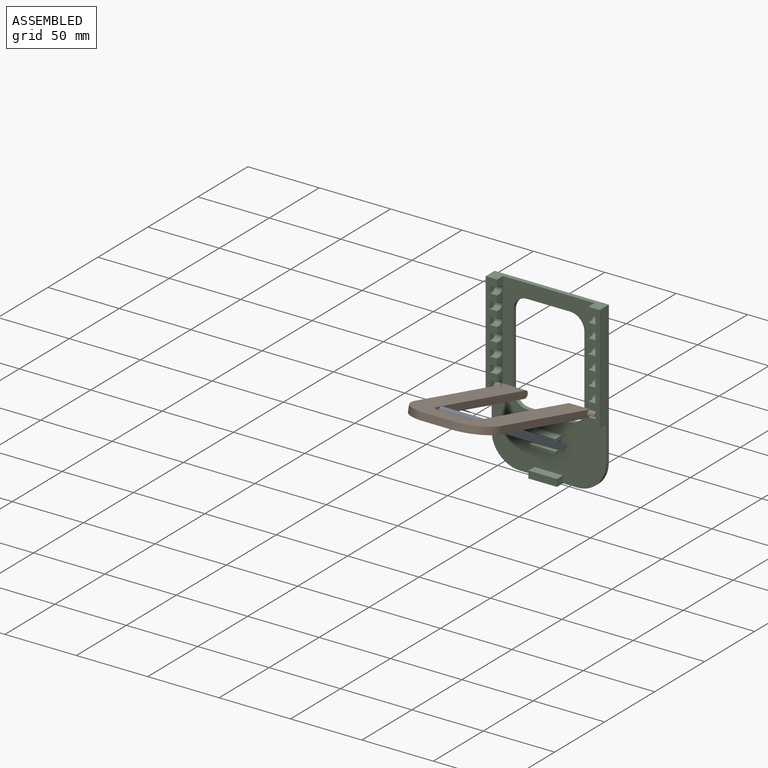
[diagram: assembled view]
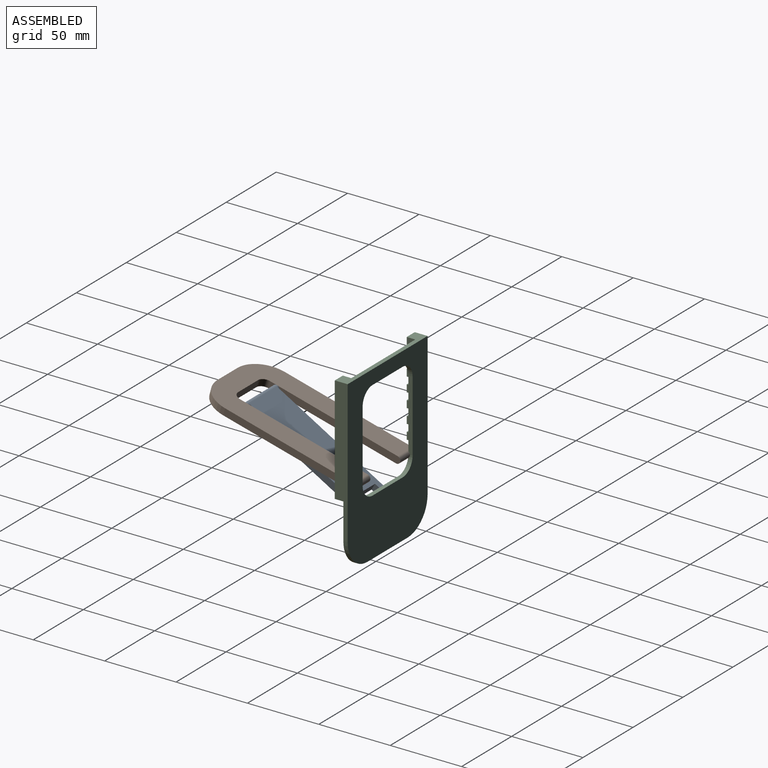
[diagram: assembled view, second angle]
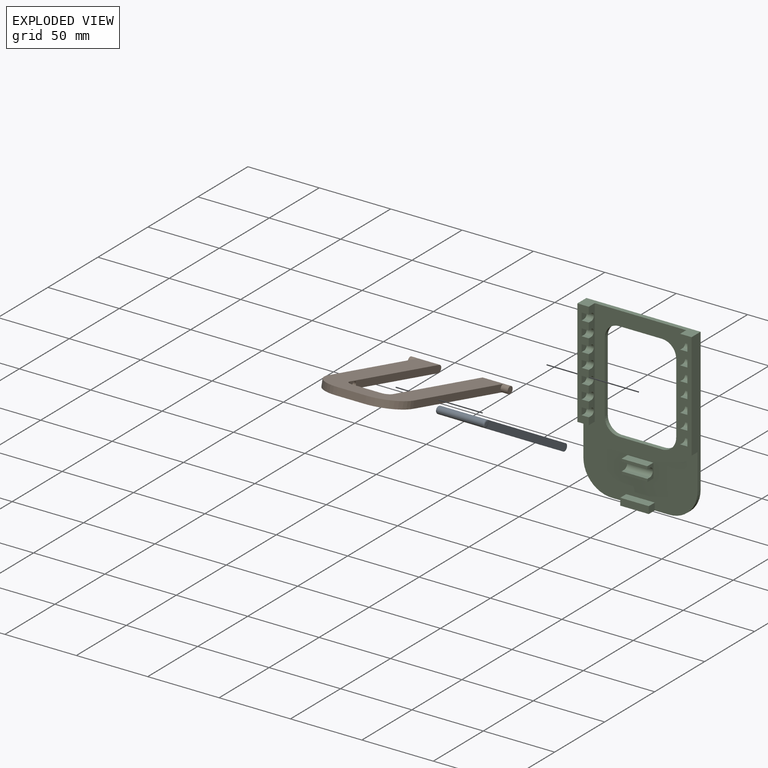
[diagram: exploded view]
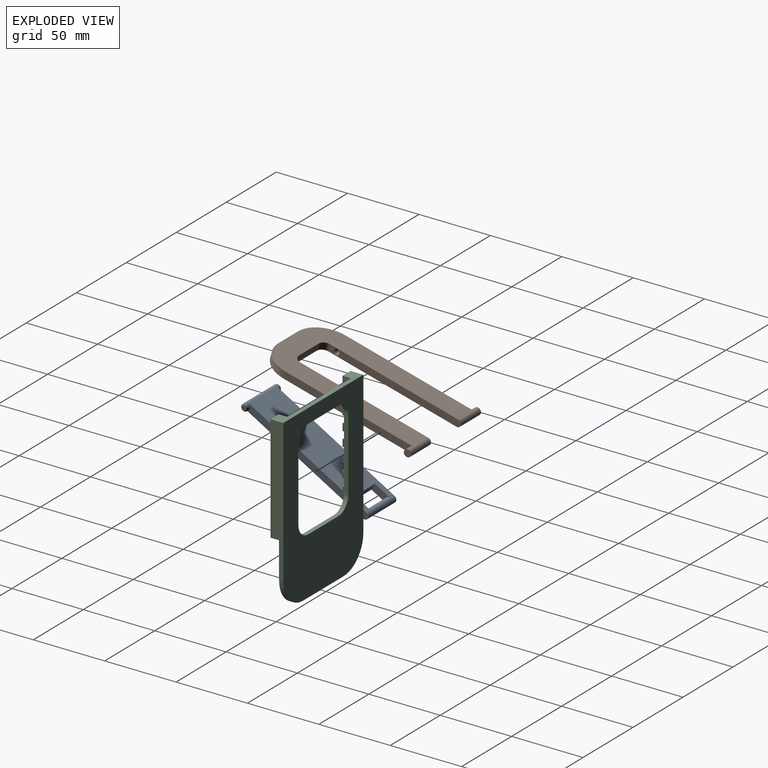
[diagram: exploded view, second angle]
ASSEMBLY  parts=3 mates=2
PART A: 13 faces, bbox 34x5.4x100.2 mm
  f0: plane 97.5x5mm, normal (1,0,0), area 475mm2, adj f4,f5,f7,f8
  f1: plane 97.5x5mm, normal (-1,0,0), area 475mm2, adj f4,f5,f7,f8
  f2: plane 12.5x5mm, normal (-1,0,0), area 52.7mm2, adj f4,f5,f6,f7
  f3: plane 12.5x5mm, normal (1,0,0), area 52.7mm2, adj f4,f5,f6,f7
  f4: plane 95x28mm, normal (0,-1,0), area 2410mm2, adj f0,f1,f2,f3,f6,f7,f8
  f5: plane 95x28mm, normal (0,1,0), area 2410mm2, adj f0,f1,f2,f3,f6,f7,f8
  f6: plane 20x5mm, normal (0,0,-1), area 100mm2, adj f2,f3,f4,f5
  f7: cylinder r=2.5mm len=28mm, axis (-1,0,0), area 377mm2, adj f0,f1,f2,f3,f4,f5
  f8: cylinder r=2.5mm len=32mm, axis (1,0,0), area 282.7mm2, adj f0,f1,f4,f5,f10,f12
  f9: plane 3x3mm, normal (-1,0,0), area 7.1mm2, adj f10
  f10: torus R=1.5mm, axis (-1,0,0), area 21.1mm2, adj f8,f9
  f11: plane 3x3mm, normal (1,0,0), area 7.1mm2, adj f12
  f12: torus R=1.5mm, axis (1,0,0), area 21.1mm2, adj f8,f11
PART B: 20 faces, bbox 70x115x5 mm
  f0: plane 92.5x5mm, normal (1,0,0), area 452.7mm2, adj f6,f7,f10,f16
  f1: plane 92.5x5mm, normal (-1,0,0), area 452.7mm2, adj f6,f7,f8,f17
  f2: plane 95x5mm, normal (-1,0,0), area 459.8mm2, adj f6,f7,f10,f14,f19
  f3: plane 20x5mm, normal (0,1,0), area 100mm2, adj f6,f7,f16,f17
  f4: plane 95x5mm, normal (1,0,0), area 459.8mm2, adj f6,f7,f8,f12,f18
  f5: plane 20x5mm, normal (0,-1,0), area 100mm2, adj f6,f7,f18,f19
  f6: plane 112.5x60mm, normal (0,0,1), area 3664mm2, adj f0,f1,f2,f3,f4,f5,f8,f10
  f7: plane 112.5x60mm, normal (0,0,-1), area 3664mm2, adj f0,f1,f2,f3,f4,f5,f8,f10
  f8: cylinder r=2.5mm len=20mm, axis (1,0,0), area 196.3mm2, adj f1,f4,f6,f7,f9
  f9: plane 5x5mm, normal (-1,0,0), area 19.6mm2, adj f8
  f10: cylinder r=2.5mm len=20mm, axis (-1,0,0), area 196.3mm2, adj f0,f2,f6,f7,f11
  f11: plane 5x5mm, normal (1,0,0), area 19.6mm2, adj f10
  f12: cylinder r=2mm len=4mm, axis (1,0,0), area 12.6mm2, adj f4,f13
  f13: sphere r=2mm, area 25.1mm2, adj f12
  f14: cylinder r=2mm len=4mm, axis (-1,0,0), area 12.6mm2, adj f2,f15
  f15: sphere r=2mm, area 25.1mm2, adj f14
  f16: cylinder r=20mm len=20mm, axis (0,0,-1), area 157.1mm2, adj f0,f3,f6,f7
  f17: cylinder r=20mm len=20mm, axis (0,0,1), area 157.1mm2, adj f1,f3,f6,f7
  f18: cylinder r=5mm len=5mm, axis (0,0,1), area 39.3mm2, adj f4,f5,f6,f7
  f19: cylinder r=5mm len=5mm, axis (0,0,-1), area 39.3mm2, adj f2,f5,f6,f7
PART C: 91 faces, bbox 80x9x120 mm
  f0: cylinder r=2.5mm len=5mm, axis (1,0,0), area 39.3mm2, adj f1,f2,f3,f84
  f1: plane 5x2.5mm, normal (0,0,-1), area 12.5mm2, adj f0,f2,f84,f86
  f2: plane 5x5mm, normal (-1,0,0), area 22.3mm2, adj f0,f1,f3,f86
  f3: plane 5x2.5mm, normal (0,0,1), area 12.5mm2, adj f0,f2,f84,f86
  f4: cylinder r=2.5mm len=5mm, axis (1,0,0), area 39.3mm2, adj f5,f6,f7,f84
  f5: plane 5x2.5mm, normal (0,0,-1), area 12.5mm2, adj f4,f6,f84,f86
  f6: plane 5x5mm, normal (-1,0,0), area 22.3mm2, adj f4,f5,f7,f86
  f7: plane 5x2.5mm, normal (0,0,1), area 12.5mm2, adj f4,f6,f84,f86
  f8: cylinder r=2.5mm len=5mm, axis (1,0,0), area 39.3mm2, adj f9,f10,f11,f84
  f9: plane 5x2.5mm, normal (0,0,-1), area 12.5mm2, adj f8,f10,f84,f86
  f10: plane 5x5mm, normal (-1,0,0), area 22.3mm2, adj f8,f9,f11,f86
  f11: plane 5x2.5mm, normal (0,0,1), area 12.5mm2, adj f8,f10,f84,f86
  f12: cylinder r=2.5mm len=5mm, axis (1,0,0), area 39.3mm2, adj f13,f14,f15,f84
  f13: plane 5x2.5mm, normal (0,0,-1), area 12.5mm2, adj f12,f14,f84,f86
  f14: plane 5x5mm, normal (-1,0,0), area 22.3mm2, adj f12,f13,f15,f86
  f15: plane 5x2.5mm, normal (0,0,1), area 12.5mm2, adj f12,f14,f84,f86
  f16: cylinder r=2.5mm len=5mm, axis (1,0,0), area 39.3mm2, adj f17,f18,f19,f84
  f17: plane 5x2.5mm, normal (0,0,-1), area 12.5mm2, adj f16,f18,f84,f86
  f18: plane 5x5mm, normal (-1,0,0), area 22.3mm2, adj f16,f17,f19,f86
  f19: plane 5x2.5mm, normal (0,0,1), area 12.5mm2, adj f16,f18,f84,f86
  f20: cylinder r=2.5mm len=5mm, axis (1,0,0), area 39.3mm2, adj f21,f22,f23,f84
  f21: plane 5x2.5mm, normal (0,0,-1), area 12.5mm2, adj f20,f22,f84,f86
  f22: plane 5x5mm, normal (-1,0,0), area 22.3mm2, adj f20,f21,f23,f86
  f23: plane 5x2.5mm, normal (0,0,1), area 12.5mm2, adj f20,f22,f84,f86
  f24: plane 120x80mm, normal (0,-1,0), area 4534.2mm2, adj f25,f51,f53,f54,f55,f56,f57,f58
  f25: plane 10x6mm, normal (1,0,0), area 30.9mm2, adj f24,f26,f77,f79,f80,f81,f82,f83
  f26: plane 18x2mm, normal (0,-1,0), area 36mm2, adj f25,f77,f78,f81
  f27: cylinder r=2.5mm len=5mm, axis (1,0,0), area 39.3mm2, adj f28,f29,f30,f51
  f28: plane 5x2.5mm, normal (0,0,-1), area 12.5mm2, adj f27,f29,f51,f68
  f29: plane 5x5mm, normal (1,0,0), area 22.3mm2, adj f27,f28,f30,f68
  f30: plane 5x2.5mm, normal (0,0,1), area 12.5mm2, adj f27,f29,f51,f68
  f31: cylinder r=2.5mm len=5mm, axis (1,0,0), area 39.3mm2, adj f32,f33,f34,f51
  f32: plane 5x2.5mm, normal (0,0,-1), area 12.5mm2, adj f31,f33,f51,f68
  f33: plane 5x5mm, normal (1,0,0), area 22.3mm2, adj f31,f32,f34,f68
  f34: plane 5x2.5mm, normal (0,0,1), area 12.5mm2, adj f31,f33,f51,f68
  f35: cylinder r=2.5mm len=5mm, axis (1,0,0), area 39.3mm2, adj f36,f37,f38,f51
  f36: plane 5x2.5mm, normal (0,0,-1), area 12.5mm2, adj f35,f37,f51,f68
  f37: plane 5x5mm, normal (1,0,0), area 22.3mm2, adj f35,f36,f38,f68
  f38: plane 5x2.5mm, normal (0,0,1), area 12.5mm2, adj f35,f37,f51,f68
  f39: cylinder r=2.5mm len=5mm, axis (1,0,0), area 39.3mm2, adj f40,f41,f42,f51
  f40: plane 5x2.5mm, normal (0,0,-1), area 12.5mm2, adj f39,f41,f51,f68
  f41: plane 5x5mm, normal (1,0,0), area 22.3mm2, adj f39,f40,f42,f68
  f42: plane 5x2.5mm, normal (0,0,1), area 12.5mm2, adj f39,f41,f51,f68
  f43: cylinder r=2.5mm len=5mm, axis (1,0,0), area 39.3mm2, adj f44,f45,f46,f51
  f44: plane 5x2.5mm, normal (0,0,-1), area 12.5mm2, adj f43,f45,f51,f68
  f45: plane 5x5mm, normal (1,0,0), area 22.3mm2, adj f43,f44,f46,f68
  f46: plane 5x2.5mm, normal (0,0,1), area 12.5mm2, adj f43,f45,f51,f68
  f47: cylinder r=2.5mm len=5mm, axis (1,0,0), area 39.3mm2, adj f48,f49,f50,f51
  f48: plane 5x2.5mm, normal (0,0,-1), area 12.5mm2, adj f47,f49,f51,f68
  f49: plane 5x5mm, normal (1,0,0), area 22.3mm2, adj f47,f48,f50,f68
  f50: plane 5x2.5mm, normal (0,0,1), area 12.5mm2, adj f47,f49,f51,f68
  f51: plane 75x6mm, normal (1,0,0), area 293.8mm2, adj f24,f27,f28,f30,f31,f32,f34,f35
  f52: plane 120x80mm, normal (0,1,0), area 6014.2mm2, adj f53,f54,f55,f56,f57,f58,f59,f60
  f53: plane 80x9mm, normal (0,0,1), area 336mm2, adj f24,f51,f52,f54,f56,f68,f84,f86
  f54: plane 100x9mm, normal (-1,0,0), area 750mm2, adj f24,f52,f53,f65,f67,f68
  f55: plane 40x9mm, normal (0,0,-1), area 240mm2, adj f24,f52,f65,f66,f73,f75,f76
  f56: plane 100x9mm, normal (1,0,0), area 750mm2, adj f24,f52,f53,f66,f85,f86
  f57: plane 50x3mm, normal (-1,0,0), area 150mm2, adj f24,f52,f61,f64
  f58: plane 30x3mm, normal (0,0,-1), area 90mm2, adj f24,f52,f61,f62
  f59: plane 50x3mm, normal (1,0,0), area 150mm2, adj f24,f52,f62,f63
  f60: plane 30x3mm, normal (0,0,1), area 90mm2, adj f24,f52,f63,f64
  f61: cylinder r=10mm len=10mm, axis (0,-1,0), area 47.1mm2, adj f24,f52,f57,f58
  f62: cylinder r=10mm len=10mm, axis (0,1,0), area 47.1mm2, adj f24,f52,f58,f59
  f63: cylinder r=10mm len=10mm, axis (0,1,0), area 47.1mm2, adj f24,f52,f59,f60
  f64: cylinder r=10mm len=10mm, axis (0,-1,0), area 47.1mm2, adj f24,f52,f57,f60
  f65: cylinder r=20mm len=20mm, axis (0,1,0), area 94.2mm2, adj f24,f52,f54,f55
  f66: cylinder r=20mm len=20mm, axis (0,-1,0), area 94.2mm2, adj f24,f52,f55,f56
  f67: plane 8x6mm, normal (0,0,-1), area 48mm2, adj f24,f51,f54,f68
  f68: plane 75x8mm, normal (0,-1,0), area 425mm2, adj f28,f29,f30,f32,f33,f34,f36,f37
  f69: plane 5x2.5mm, normal (0,0,-1), area 12.5mm2, adj f51,f68,f70,f72
  f70: plane 5x5mm, normal (1,0,0), area 22.3mm2, adj f68,f69,f71,f72
  f71: plane 5x2.5mm, normal (0,0,1), area 12.5mm2, adj f51,f68,f70,f72
  f72: cylinder r=2.5mm len=5mm, axis (1,0,0), area 39.3mm2, adj f51,f69,f70,f71
  f73: plane 6x5mm, normal (1,0,0), area 30mm2, adj f24,f55,f74,f76
  f74: plane 20x6mm, normal (0,0,1), area 120mm2, adj f24,f73,f75,f76
  f75: plane 6x5mm, normal (-1,0,0), area 30mm2, adj f24,f55,f74,f76
  f76: plane 20x5mm, normal (0,-1,0), area 100mm2, adj f55,f73,f74,f75
  f77: plane 18x6mm, normal (0,0,1), area 108mm2, adj f24,f25,f26,f78
  f78: plane 10x6mm, normal (-1,0,0), area 30.9mm2, adj f24,f26,f77,f79,f80,f81,f82,f83
  f79: plane 18x6mm, normal (0,0,-1), area 108mm2, adj f24,f25,f78,f80
  f80: plane 18x2mm, normal (0,-1,0), area 36mm2, adj f25,f78,f79,f83
  f81: plane 18x2.5mm, normal (0,0,-1), area 45mm2, adj f25,f26,f78,f82
  f82: cylinder r=3mm len=18mm, axis (-1,0,0), area 169.6mm2, adj f25,f78,f81,f83
  f83: plane 18x2.5mm, normal (0,0,1), area 45mm2, adj f25,f78,f80,f82
  f84: plane 75x6mm, normal (-1,0,0), area 293.8mm2, adj f0,f1,f3,f4,f5,f7,f8,f9
  f85: plane 8x6mm, normal (0,0,-1), area 48mm2, adj f24,f56,f84,f86
  f86: plane 75x8mm, normal (0,-1,0), area 425mm2, adj f1,f2,f3,f5,f6,f7,f9,f10
  f87: plane 5x2.5mm, normal (0,0,1), area 12.5mm2, adj f84,f86,f88,f90
  f88: plane 5x5mm, normal (-1,0,0), area 22.3mm2, adj f86,f87,f89,f90
  f89: plane 5x2.5mm, normal (0,0,-1), area 12.5mm2, adj f84,f86,f88,f90
  f90: cylinder r=2.5mm len=5mm, axis (1,0,0), area 39.3mm2, adj f84,f87,f88,f89
PLACE A rot(axis=(0,0.5,-0.87),180deg) t=(-12.41,-49.2,-10.31)mm
PLACE B rot(axis=(1,0,0),165.2deg) t=(-12.41,-57.12,9.57)mm
PLACE C t=(-11.96,-0.23,3.27)mm fixed
MATE revolute A.f10 <-> B.f14  axis (1,0,0) through (3.59,-89.18,15.45)mm
MATE cylindrical A.f7 <-> C.f82  axis (1,0,0) through (-12.41,-6.73,-31.73)mm
